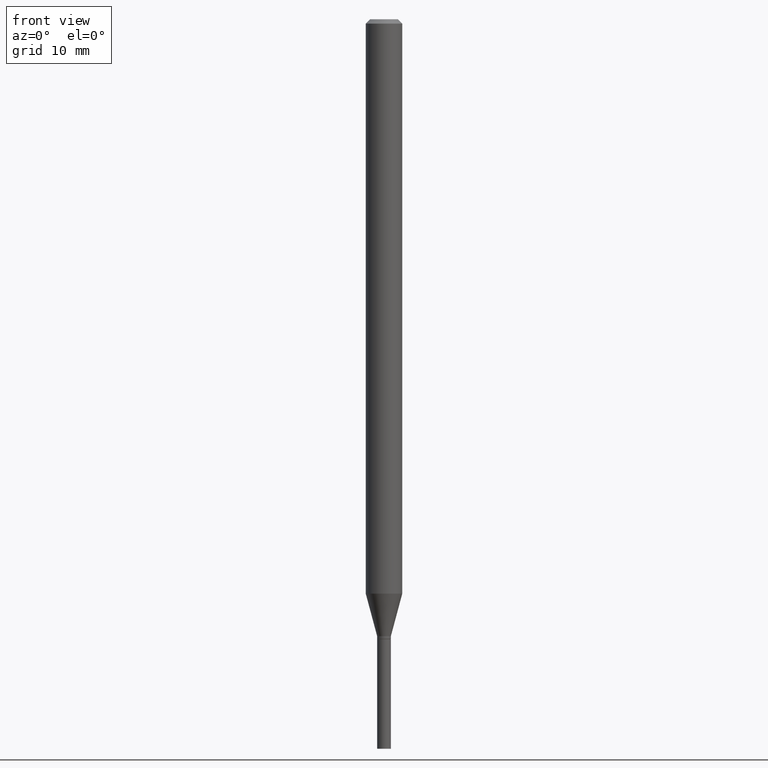
[diagram: clean part render]
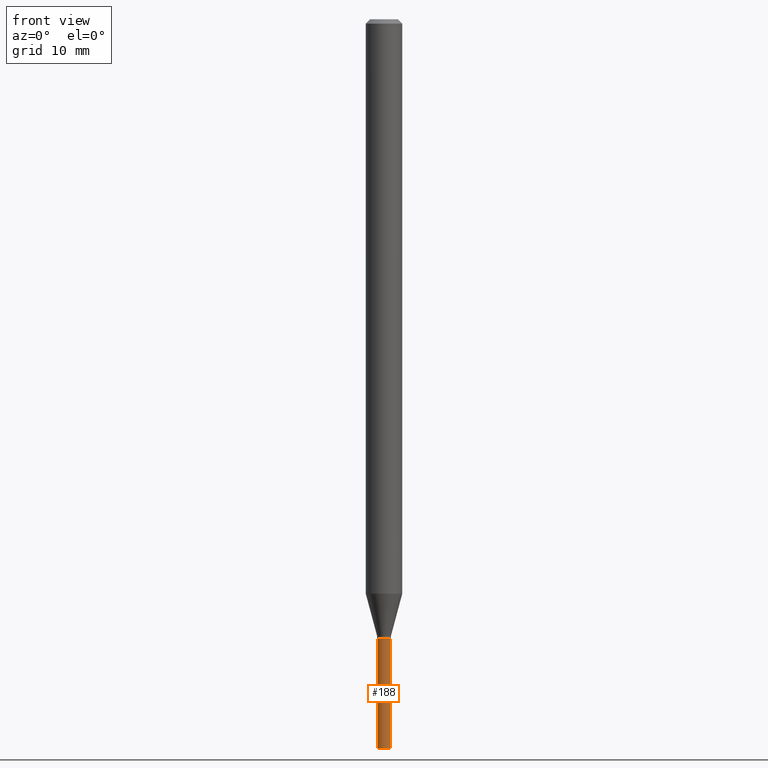
[diagram: same view with one face highlighted and labeled with its STEP entity id]
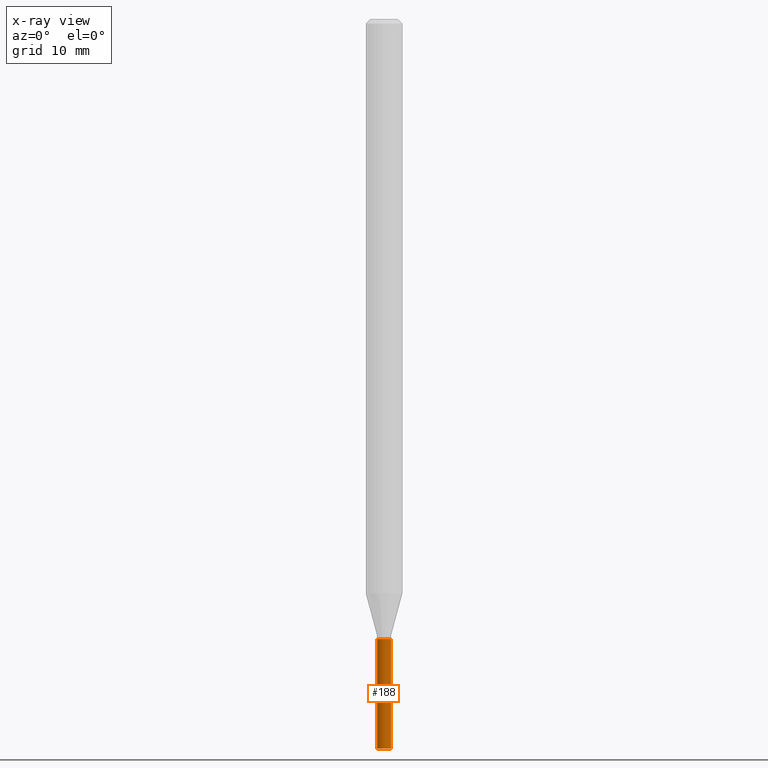
[diagram: x-ray of the same camera — body ghosted, the highlighted face saturated]
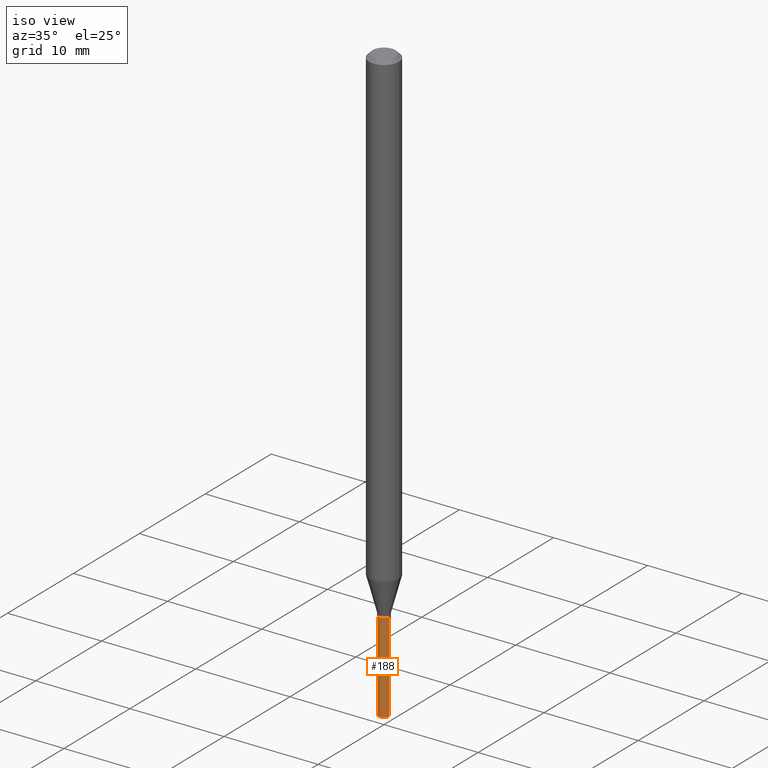
[diagram: same view with one face highlighted and labeled with its STEP entity id]
A machine part, front view. The second image highlights one B-rep face of the part: STEP entity #188.
The next image is the same camera in x-ray: the body ghosted, the highlighted face saturated — about 0% of this face is hidden behind the body in this view.
A second angle (iso view) of the same face is appended — the face is thin or edge-on in the first view.
In plain terms, the highlighted cylindrical surface (edge-blend (fillet) strip) has radius 0.5969 mm, axis along (-0, 0, 1).
Its self-contained STEP definition (entity closure, byte-faithful):
#27 = VERTEX_POINT ( 'NONE', #438 ) ;
#34 = DIRECTION ( 'NONE',  ( 1.000000000000000000, -6.982962677686269866E-15, 0.000000000000000000 ) ) ;
#39 = DIRECTION ( 'NONE',  ( -2.445468806185136597E-29, 3.491481338843145583E-15, 1.000000000000000000 ) ) ;
#47 = AXIS2_PLACEMENT_3D ( 'NONE', #258, #388, #34 ) ;
#53 = DIRECTION ( 'NONE',  ( 1.000000000000000000, -6.982962677686228056E-15, 0.000000000000000000 ) ) ;
#78 = VERTEX_POINT ( 'NONE', #343 ) ;
#105 = CIRCLE ( 'NONE', #285, 0.02350000000000000352 ) ;
#122 = CARTESIAN_POINT ( 'NONE',  ( 6.113672015462842613E-29, -8.728703347107864943E-15, -2.500000000000000000 ) ) ;
#127 = AXIS2_PLACEMENT_3D ( 'NONE', #460, #39, #137 ) ;
#130 = ORIENTED_EDGE ( 'NONE', *, *, #222, .F. ) ;
#137 = DIRECTION ( 'NONE',  ( 1.000000000000000000, -6.982962677686265922E-15, 4.876176775795935793E-29 ) ) ;
#145 = ORIENTED_EDGE ( 'NONE', *, *, #380, .T. ) ;
#168 = EDGE_CURVE ( 'NONE', #240, #421, #295, .T. ) ;
#188 = ADVANCED_FACE ( 'NONE', ( #424 ), #213, .T. ) ;
#196 = EDGE_LOOP ( 'NONE', ( #370, #145, #263, #130 ) ) ;
#213 = CYLINDRICAL_SURFACE ( 'NONE', #127, 0.02350000000000000352 ) ;
#218 = CARTESIAN_POINT ( 'NONE',  ( -0.02350000000000000352, 1.669775429036235687E-16, -1.155949746209903035E-30 ) ) ;
#219 = EDGE_CURVE ( 'NONE', #27, #78, #458, .T. ) ;
#222 = EDGE_CURVE ( 'NONE', #78, #421, #267, .T. ) ;
#240 = VERTEX_POINT ( 'NONE', #326 ) ;
#249 = VECTOR ( 'NONE', #325, 39.37007874015748143 ) ;
#256 = CARTESIAN_POINT ( 'NONE',  ( 0.02350000000000000352, -1.640996229256272766E-16, 1.145901542312045115E-30 ) ) ;
#258 = CARTESIAN_POINT ( 'NONE',  ( 5.194175744337230786E-29, -7.415906363702842194E-15, -2.124000000000000110 ) ) ;
#263 = ORIENTED_EDGE ( 'NONE', *, *, #168, .T. ) ;
#267 = CIRCLE ( 'NONE', #47, 0.02350000000000000352 ) ;
#285 = AXIS2_PLACEMENT_3D ( 'NONE', #122, #372, #53 ) ;
#290 = DIRECTION ( 'NONE',  ( -2.445468806185136877E-29, 3.491481338843145188E-15, 1.000000000000000000 ) ) ;
#295 = LINE ( 'NONE', #256, #249 ) ;
#306 = VECTOR ( 'NONE', #290, 39.37007874015748143 ) ;
#325 = DIRECTION ( 'NONE',  ( -2.445468806185136877E-29, 3.491481338843145188E-15, 1.000000000000000000 ) ) ;
#326 = CARTESIAN_POINT ( 'NONE',  ( 0.02350000000000000352, -8.892802970033491011E-15, -2.500000000000000000 ) ) ;
#343 = CARTESIAN_POINT ( 'NONE',  ( -0.02350000000000000352, -7.905327312501728693E-15, -2.124000000000000110 ) ) ;
#345 = CARTESIAN_POINT ( 'NONE',  ( 0.02350000000000000352, -7.580005986628469840E-15, -2.124000000000000110 ) ) ;
#370 = ORIENTED_EDGE ( 'NONE', *, *, #219, .F. ) ;
#372 = DIRECTION ( 'NONE',  ( -2.445468806185136597E-29, 3.491481338843145583E-15, 1.000000000000000000 ) ) ;
#380 = EDGE_CURVE ( 'NONE', #27, #240, #105, .T. ) ;
#388 = DIRECTION ( 'NONE',  ( -2.445468806185136597E-29, 3.491481338843145583E-15, 1.000000000000000000 ) ) ;
#421 = VERTEX_POINT ( 'NONE', #345 ) ;
#424 = FACE_OUTER_BOUND ( 'NONE', #196, .T. ) ;
#438 = CARTESIAN_POINT ( 'NONE',  ( -0.02350000000000000352, -7.905327312501728693E-15, -2.500000000000000000 ) ) ;
#458 = LINE ( 'NONE', #218, #306 ) ;
#460 = CARTESIAN_POINT ( 'NONE',  ( 0.000000000000000000, 0.000000000000000000, 0.000000000000000000 ) ) ;